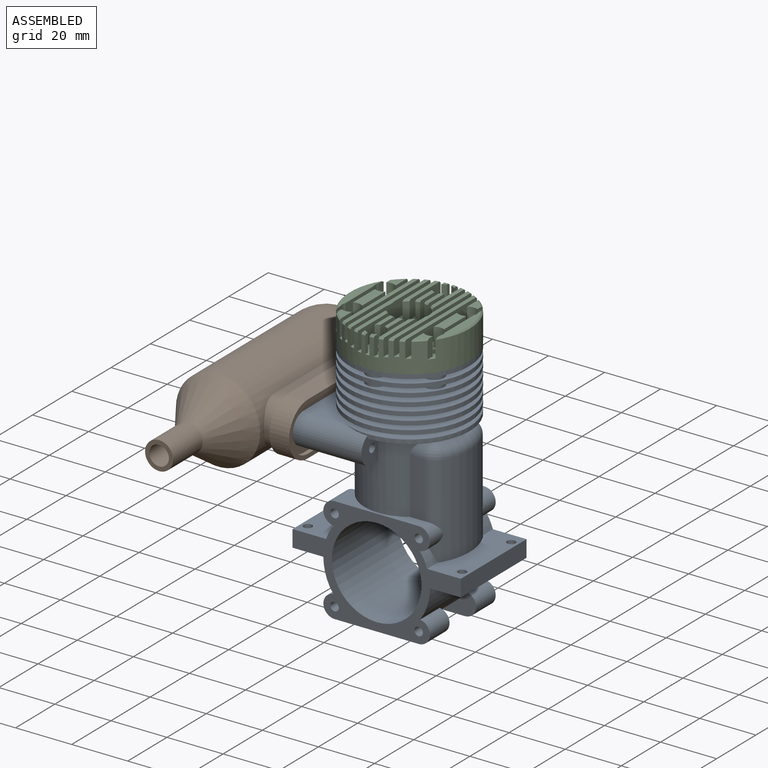
[diagram: assembled view]
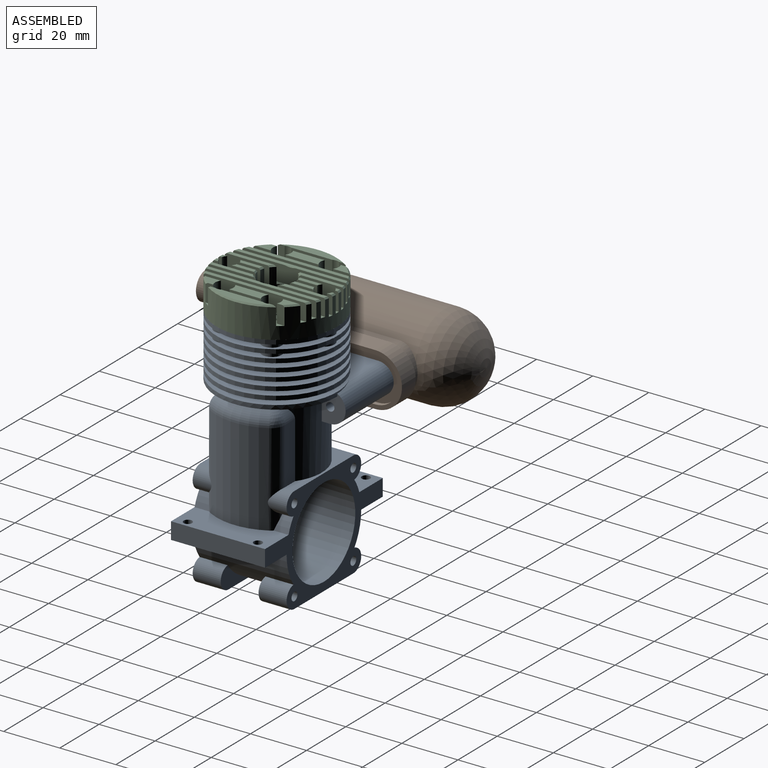
[diagram: assembled view, second angle]
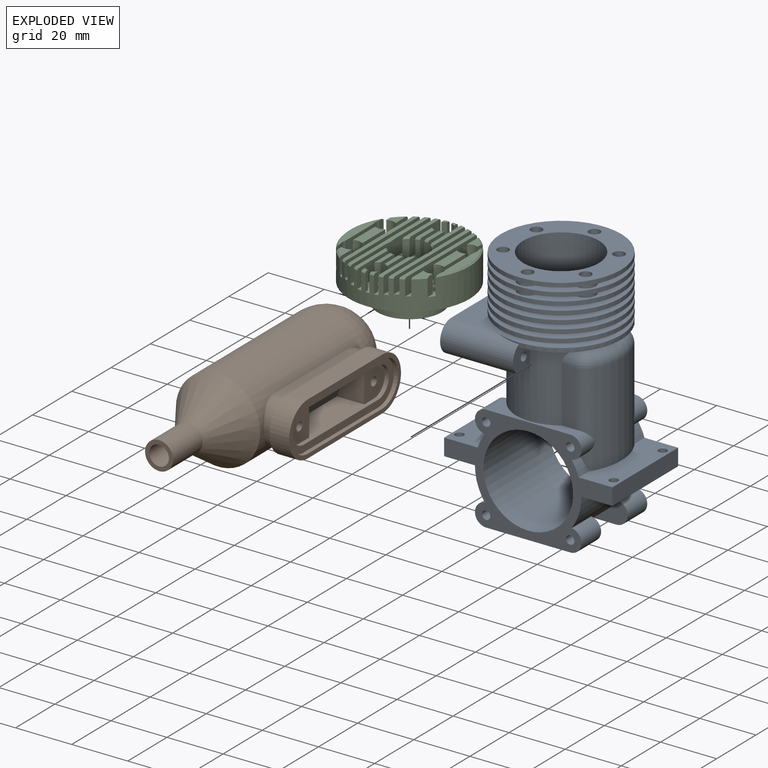
[diagram: exploded view]
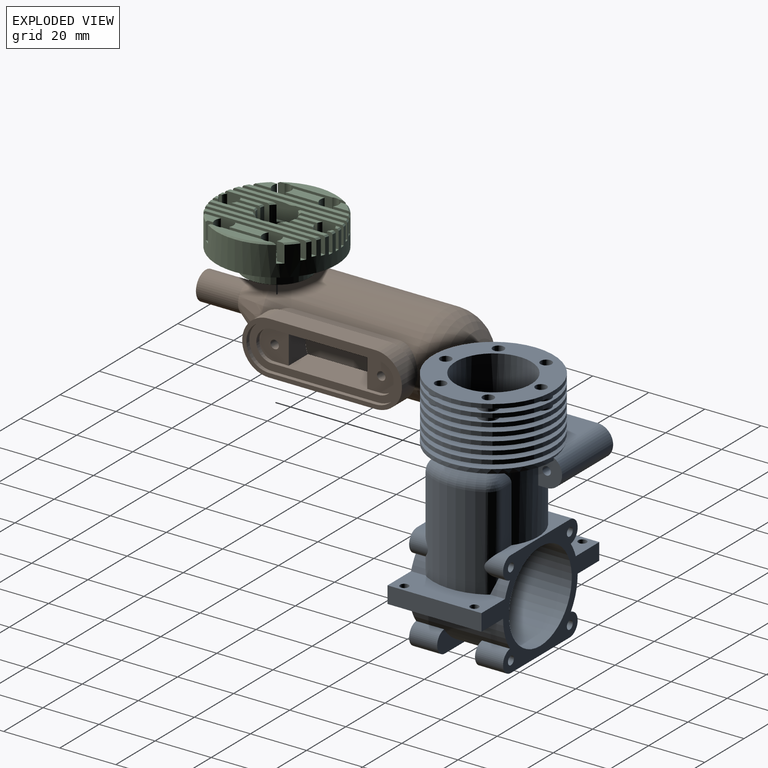
[diagram: exploded view, second angle]
ASSEMBLY  parts=3 mates=5
PART A: 167 faces, bbox 60x49x86.5 mm
  f0: cylinder r=16mm len=33.5mm, axis (0,-1,0), area 2588.1mm2, adj f2,f64,f67,f121,f122,f123,f124,f125
  f1: plane 49x11mm, normal (-1,0,0), area 290.9mm2, adj f45,f76,f78,f79,f117,f118,f119,f120
  f2: cylinder r=13.5mm len=58.92mm, axis (0,0,-1), area 3521mm2, adj f0,f19,f117,f118,f119,f120,f124,f125
  f3: cylinder r=16mm len=10.06mm, axis (0,0,-1), area 15.4mm2, adj f17,f25,f111,f115
  f4: cylinder r=16mm len=10.06mm, axis (0,0,-1), area 15.4mm2, adj f18,f21,f112,f116
  f5: cylinder r=16mm len=8.71mm, axis (0,0,-1), area 15.4mm2, adj f17,f25,f107,f111
  f6: cylinder r=16mm len=8.71mm, axis (0,0,-1), area 15.4mm2, adj f18,f21,f108,f112
  f7: cylinder r=16mm len=8.71mm, axis (0,0,-1), area 15.4mm2, adj f17,f25,f103,f107
  f8: cylinder r=16mm len=8.71mm, axis (0,0,-1), area 15.4mm2, adj f18,f21,f104,f108
  f9: cylinder r=16mm len=10.06mm, axis (0,0,-1), area 15.4mm2, adj f17,f25,f99,f103
  f10: cylinder r=16mm len=10.06mm, axis (0,0,-1), area 15.4mm2, adj f18,f21,f100,f104
  f11: cylinder r=16mm len=8.71mm, axis (0,0,-1), area 15.4mm2, adj f17,f25,f95,f99
  f12: cylinder r=16mm len=8.71mm, axis (0,0,-1), area 15.4mm2, adj f18,f21,f96,f100
  f13: cylinder r=19mm len=5.28mm, axis (0,1,0), area 25.3mm2, adj f61,f62,f64,f80
  f14: plane 30x10mm, normal (0,0,1), area 90.9mm2, adj f62,f63,f64,f70,f74,f85,f88
  f15: cylinder r=16mm len=8.71mm, axis (0,0,-1), area 15.4mm2, adj f17,f25,f95,f115
  f16: cylinder r=21.5mm len=43mm, axis (0,0,1), area 202.6mm2, adj f17,f18
  f17: plane 43x43mm, normal (0,0,-1), area 486.6mm2, adj f3,f5,f7,f9,f11,f15,f16,f95
  f18: plane 43x43mm, normal (0,0,1), area 486.6mm2, adj f4,f6,f8,f10,f12,f16,f22,f96
  f19: plane 43x43mm, normal (0,0,1), area 804.2mm2, adj f2,f20,f133,f135,f137,f139,f141,f143
  f20: cylinder r=21.5mm len=43mm, axis (0,0,1), area 202.6mm2, adj f19,f21
  f21: plane 43x43mm, normal (0,0,-1), area 486.6mm2, adj f4,f6,f8,f10,f12,f20,f22,f96
  f22: cylinder r=16mm len=8.71mm, axis (0,0,-1), area 15.4mm2, adj f18,f21,f96,f116
  f23: cylinder r=21.5mm len=43mm, axis (0,0,1), area 202.6mm2, adj f24,f25
  f24: plane 43x43mm, normal (0,0,-1), area 486.6mm2, adj f23,f26,f94,f98,f102,f106,f110,f114
  f25: plane 43x43mm, normal (0,0,1), area 486.6mm2, adj f3,f5,f7,f9,f11,f15,f23,f95
  f26: cylinder r=16mm len=32mm, axis (0,0,-1), area 131.2mm2, adj f24,f29,f93,f94,f97,f98,f101,f102
  f27: cylinder r=21.5mm len=43mm, axis (0,0,1), area 202.6mm2, adj f28,f29
  f28: plane 43x43mm, normal (0,0,-1), area 648mm2, adj f27,f30
  f29: plane 43x43mm, normal (0,0,1), area 648mm2, adj f26,f27
  f30: cylinder r=16mm len=32mm, axis (0,0,-1), area 150.8mm2, adj f28,f33
  f31: cylinder r=21.5mm len=43mm, axis (0,0,1), area 202.6mm2, adj f32,f33
  f32: plane 43x43mm, normal (0,0,-1), area 648mm2, adj f31,f34
  f33: plane 43x43mm, normal (0,0,1), area 648mm2, adj f30,f31
  f34: cylinder r=16mm len=32mm, axis (0,0,-1), area 150.8mm2, adj f32,f37
  f35: cylinder r=21.5mm len=43mm, axis (0,0,1), area 202.6mm2, adj f36,f37
  f36: plane 43x43mm, normal (0,0,-1), area 648mm2, adj f35,f38
  f37: plane 43x43mm, normal (0,0,1), area 648mm2, adj f34,f35
  f38: cylinder r=16mm len=32mm, axis (0,0,-1), area 150.8mm2, adj f36,f41
  f39: cylinder r=21.5mm len=43mm, axis (0,0,1), area 202.6mm2, adj f40,f41
  f40: plane 43x43mm, normal (0,0,-1), area 648mm2, adj f39,f42
  f41: plane 43x43mm, normal (0,0,1), area 648mm2, adj f38,f39
  f42: cylinder r=16mm len=32mm, axis (0,0,-1), area 150.8mm2, adj f40,f45
  f43: cylinder r=21.5mm len=43mm, axis (0,0,1), area 107.9mm2, adj f44,f45,f75,f77,f78,f79
  f44: plane 43x21.5mm, normal (0,0,-1), area 324mm2, adj f43,f74,f75,f77
  f45: plane 47.5x43mm, normal (0,0,1), area 943.8mm2, adj f1,f42,f43,f78,f79
  f46: plane 19x7.97mm, normal (0,1,0), area 58.3mm2, adj f50,f51,f58
  f47: plane 19x7.97mm, normal (0,-1,0), area 58.3mm2, adj f56,f57,f58
  f48: plane 19x7.97mm, normal (0,-1,0), area 58.3mm2, adj f55,f56,f58
  f49: plane 19x7.97mm, normal (0,1,0), area 58.3mm2, adj f51,f52,f58
  f50: cylinder r=4mm len=10mm, axis (0,1,0), area 120.9mm2, adj f46,f51,f58,f64
  f51: plane 30x10mm, normal (0,0,-1), area 300mm2, adj f46,f49,f50,f52,f64
  f52: cylinder r=4mm len=10mm, axis (0,-1,0), area 120.9mm2, adj f49,f51,f58,f64
  f53: plane 33.5x6mm, normal (-1,0,0), area 201mm2, adj f54,f64,f65,f67
  f54: plane 33.5x11mm, normal (0,0,-1), area 354.4mm2, adj f53,f58,f64,f67,f164,f166
  f55: cylinder r=4mm len=10mm, axis (0,-1,0), area 120.9mm2, adj f48,f56,f58,f67
  f56: plane 30x10mm, normal (0,0,-1), area 300mm2, adj f47,f48,f55,f57,f67
  f57: cylinder r=4mm len=10mm, axis (0,1,0), area 120.9mm2, adj f47,f56,f58,f67
  f58: cylinder r=19mm len=38mm, axis (0,1,0), area 1276.4mm2, adj f46,f47,f48,f49,f50,f52,f54,f55
  f59: plane 33.5x11mm, normal (0,0,-1), area 354.4mm2, adj f58,f60,f64,f67,f163,f165
  f60: plane 33.5x6mm, normal (1,0,0), area 201mm2, adj f59,f61,f64,f67
  f61: plane 33.5x11.97mm, normal (0,0,1), area 331.9mm2, adj f13,f60,f64,f67,f69,f80,f81,f86
  f62: cylinder r=4mm len=7.97mm, axis (0,1,0), area 63.2mm2, adj f13,f14,f64,f80,f86,f88
  f63: cylinder r=4mm len=10mm, axis (0,-1,0), area 120.9mm2, adj f14,f64,f70,f71
  f64: plane 60x38mm, normal (0,-1,0), area 670.5mm2, adj f0,f13,f14,f50,f51,f52,f53,f54
  f65: plane 33.5x11.97mm, normal (0,0,1), area 386.9mm2, adj f53,f64,f67,f71,f164,f166
  f66: cylinder r=4mm len=10mm, axis (0,-1,0), area 120.9mm2, adj f67,f71,f72,f73
  f67: plane 60x38mm, normal (0,1,0), area 670.5mm2, adj f0,f53,f54,f55,f56,f57,f58,f59
  f68: cylinder r=4mm len=7.97mm, axis (0,1,0), area 63.2mm2, adj f67,f69,f73,f81,f86,f89
  f69: cylinder r=19mm len=5.28mm, axis (0,1,0), area 25.3mm2, adj f61,f67,f68,f81
  f70: plane 7.97x4.49mm, normal (0,1,0), area 28.4mm2, adj f14,f63,f71,f74
  f71: cylinder r=19mm len=33.5mm, axis (0,1,0), area 188.4mm2, adj f63,f64,f65,f66,f67,f70,f72,f74
  f72: plane 7.97x4.49mm, normal (0,-1,0), area 28.4mm2, adj f66,f71,f73,f74
  f73: plane 30x10mm, normal (0,0,1), area 90.9mm2, adj f66,f67,f68,f72,f74,f84,f89
  f74: cylinder r=16mm len=34.76mm, axis (0,0,-1), area 1505.8mm2, adj f14,f44,f70,f71,f72,f73,f75,f76
  f75: plane 10.4x8.5mm, normal (1,0,0), area 65.7mm2, adj f43,f44,f74,f76,f79,f146
  f76: plane 38x26mm, normal (0,0,-1), area 585.9mm2, adj f1,f74,f75,f77,f78,f79
  f77: plane 10.4x8.5mm, normal (1,0,0), area 65.7mm2, adj f43,f44,f74,f76,f78,f145
  f78: cylinder r=5.5mm len=26mm, axis (-1,0,0), area 431.8mm2, adj f1,f43,f45,f76,f77
  f79: cylinder r=5.5mm len=26mm, axis (-1,0,0), area 431.8mm2, adj f1,f43,f45,f75,f76
  f80: cylinder r=5mm len=7.76mm, axis (0,0,-1), area 17.6mm2, adj f13,f61,f62,f86
  f81: cylinder r=5mm len=7.76mm, axis (0,0,-1), area 17.6mm2, adj f61,f68,f69,f86
  f82: cylinder r=5mm len=5.1mm, axis (1,0,0), area 25mm2, adj f74,f84,f87,f90
  f83: cylinder r=5mm len=5.1mm, axis (-1,0,0), area 25mm2, adj f74,f85,f87,f92
  f84: plane 20x5.1mm, normal (0,1,0), area 102.1mm2, adj f73,f74,f82,f89
  f85: plane 20x5.1mm, normal (0,-1,0), area 102.1mm2, adj f14,f74,f83,f88
  f86: cylinder r=21.5mm len=33mm, axis (0,0,-1), area 716.9mm2, adj f61,f62,f68,f80,f81,f88,f89,f91
  f87: plane 16x2.64mm, normal (0,0,1), area 8.4mm2, adj f74,f82,f83,f91
  f88: cylinder r=5mm len=22.76mm, axis (0,0,-1), area 110.7mm2, adj f14,f62,f85,f86,f92
  f89: cylinder r=5mm len=22.76mm, axis (0,0,-1), area 110.7mm2, adj f68,f73,f84,f86,f90
  f90: sphere r=5mm, area 26.6mm2, adj f82,f89,f91
  f91: torus R=16.5mm, axis (0,0,1), area 156.5mm2, adj f86,f87,f90,f92
  f92: sphere r=5mm, area 26.6mm2, adj f83,f88,f91
  f93: plane 7x4.83mm, normal (0,0,-1), area 26.9mm2, adj f26,f94
  f94: cylinder r=3.5mm len=7mm, axis (0,0,1), area 6.9mm2, adj f24,f26,f93
  f95: cylinder r=3.5mm len=7mm, axis (0,0,1), area 20.6mm2, adj f11,f15,f17,f25
  f96: cylinder r=3.5mm len=7mm, axis (0,0,1), area 20.6mm2, adj f12,f18,f21,f22
  f97: plane 6.97x6.27mm, normal (0,0,-1), area 26.9mm2, adj f26,f98
  f98: cylinder r=3.5mm len=6.97mm, axis (0,0,1), area 6.9mm2, adj f24,f26,f97
  f99: cylinder r=3.5mm len=6.97mm, axis (0,0,1), area 20.6mm2, adj f9,f11,f17,f25
  f100: cylinder r=3.5mm len=6.97mm, axis (0,0,1), area 20.6mm2, adj f10,f12,f18,f21
  f101: plane 6.97x6.27mm, normal (0,0,-1), area 26.9mm2, adj f26,f102
  f102: cylinder r=3.5mm len=6.97mm, axis (0,0,1), area 6.9mm2, adj f24,f26,f101
  f103: cylinder r=3.5mm len=6.97mm, axis (0,0,1), area 20.6mm2, adj f7,f9,f17,f25
  f104: cylinder r=3.5mm len=6.97mm, axis (0,0,1), area 20.6mm2, adj f8,f10,f18,f21
  f105: plane 7x4.83mm, normal (0,0,-1), area 26.9mm2, adj f26,f106
  f106: cylinder r=3.5mm len=7mm, axis (0,0,1), area 6.9mm2, adj f24,f26,f105
  f107: cylinder r=3.5mm len=7mm, axis (0,0,1), area 20.6mm2, adj f5,f7,f17,f25
  f108: cylinder r=3.5mm len=7mm, axis (0,0,1), area 20.6mm2, adj f6,f8,f18,f21
  f109: plane 6.97x6.27mm, normal (0,0,-1), area 26.9mm2, adj f26,f110
  f110: cylinder r=3.5mm len=6.97mm, axis (0,0,1), area 6.9mm2, adj f24,f26,f109
  f111: cylinder r=3.5mm len=6.97mm, axis (0,0,1), area 20.6mm2, adj f3,f5,f17,f25
  f112: cylinder r=3.5mm len=6.97mm, axis (0,0,1), area 20.6mm2, adj f4,f6,f18,f21
  f113: plane 6.97x6.27mm, normal (0,0,-1), area 26.9mm2, adj f26,f114
  f114: cylinder r=3.5mm len=6.97mm, axis (0,0,1), area 6.9mm2, adj f24,f26,f113
  f115: cylinder r=3.5mm len=6.97mm, axis (0,0,1), area 20.6mm2, adj f3,f15,f17,f25
  f116: cylinder r=3.5mm len=6.97mm, axis (0,0,1), area 20.6mm2, adj f4,f18,f21,f22
  f117: plane 26x22.36mm, normal (0,0,1), area 392.2mm2, adj f1,f2,f118,f120
  f118: plane 22.36x8mm, normal (0,-1,0), area 178.9mm2, adj f1,f2,f117,f119
  f119: plane 26x22.36mm, normal (0,0,-1), area 392.2mm2, adj f1,f2,f118,f120
  f120: plane 22.36x8mm, normal (0,1,0), area 178.9mm2, adj f1,f2,f117,f119
  f121: plane 22.95x5.17mm, normal (0,0,1), area 90.8mm2, adj f0,f122,f123,f126
  f122: cylinder r=3.5mm len=33mm, axis (0,0,-1), area 122.8mm2, adj f0,f121,f125,f126,f131
  f123: cylinder r=3.5mm len=33mm, axis (0,0,-1), area 122.8mm2, adj f0,f121,f124,f126,f129
  f124: plane 32.09x7.36mm, normal (0,-1,0), area 202.6mm2, adj f0,f2,f123,f128
  f125: plane 32.09x7.36mm, normal (0,1,0), area 202.6mm2, adj f0,f2,f122,f132
  f126: cylinder r=20mm len=33mm, axis (0,0,-1), area 668.2mm2, adj f121,f122,f123,f130
  f127: plane 16x5.63mm, normal (0,0,-1), area 50.7mm2, adj f2,f128,f130,f132
  f128: cylinder r=3.5mm len=7.36mm, axis (1,0,0), area 31.7mm2, adj f2,f124,f127,f129
  f129: sphere r=3.5mm, area 13mm2, adj f123,f128,f130
  f130: torus R=16.5mm, axis (0,0,1), area 104.2mm2, adj f126,f127,f129,f131
  f131: sphere r=3.5mm, area 13mm2, adj f122,f130,f132
  f132: cylinder r=3.5mm len=7.36mm, axis (-1,0,0), area 31.7mm2, adj f2,f125,f127,f131
  f133: cylinder r=2mm len=5mm, axis (0,0,1), area 62.8mm2, adj f19,f134
  f134: cone r=0mm half-angle=59deg, axis (0,0,1), area 14.7mm2, adj f133
  f135: cylinder r=2mm len=5mm, axis (0,0,1), area 62.8mm2, adj f19,f136
  f136: cone r=0mm half-angle=59deg, axis (0,0,1), area 14.7mm2, adj f135
  f137: cylinder r=2mm len=5mm, axis (0,0,1), area 62.8mm2, adj f19,f138
  f138: cone r=0mm half-angle=59deg, axis (0,0,1), area 14.7mm2, adj f137
  f139: cylinder r=2mm len=5mm, axis (0,0,1), area 62.8mm2, adj f19,f140
  f140: cone r=0mm half-angle=59deg, axis (0,0,1), area 14.7mm2, adj f139
  f141: cylinder r=2mm len=5mm, axis (0,0,1), area 62.8mm2, adj f19,f142
  f142: cone r=0mm half-angle=59deg, axis (0,0,1), area 14.7mm2, adj f141
  f143: cylinder r=2mm len=5mm, axis (0,0,1), area 62.8mm2, adj f19,f144
  f144: cone r=0mm half-angle=59deg, axis (0,0,1), area 14.7mm2, adj f143
  f145: cylinder r=1.5mm len=26mm, axis (1,0,0), area 245mm2, adj f1,f77
  f146: cylinder r=1.5mm len=26mm, axis (1,0,0), area 245mm2, adj f1,f75
  f147: cylinder r=1.5mm len=3mm, axis (0,-1,0), area 28.3mm2, adj f64,f148
  f148: cone r=0mm half-angle=59deg, axis (0,-1,0), area 8.2mm2, adj f147
  f149: cylinder r=1.5mm len=3mm, axis (0,-1,0), area 28.3mm2, adj f64,f150
  f150: cone r=0mm half-angle=59deg, axis (0,-1,0), area 8.2mm2, adj f149
  f151: cylinder r=1.5mm len=3mm, axis (0,-1,0), area 28.3mm2, adj f64,f152
  f152: cone r=0mm half-angle=59deg, axis (0,-1,0), area 8.2mm2, adj f151
  f153: cylinder r=1.5mm len=3mm, axis (0,-1,0), area 28.3mm2, adj f64,f154
  f154: cone r=0mm half-angle=59deg, axis (0,-1,0), area 8.2mm2, adj f153
  f155: cylinder r=1.5mm len=3mm, axis (0,1,0), area 28.3mm2, adj f67,f156
  f156: cone r=0mm half-angle=59deg, axis (0,1,0), area 8.2mm2, adj f155
  f157: cylinder r=1.5mm len=3mm, axis (0,1,0), area 28.3mm2, adj f67,f158
  f158: cone r=0mm half-angle=59deg, axis (0,1,0), area 8.2mm2, adj f157
  f159: cylinder r=1.5mm len=3mm, axis (0,1,0), area 28.3mm2, adj f67,f160
  f160: cone r=0mm half-angle=59deg, axis (0,1,0), area 8.2mm2, adj f159
  f161: cylinder r=1.5mm len=3mm, axis (0,1,0), area 28.3mm2, adj f67,f162
  f162: cone r=0mm half-angle=59deg, axis (0,1,0), area 8.2mm2, adj f161
  f163: cylinder r=1.5mm len=6mm, axis (0,0,-1), area 56.5mm2, adj f59,f61
  f164: cylinder r=1.5mm len=6mm, axis (0,0,-1), area 56.5mm2, adj f54,f65
  f165: cylinder r=1.5mm len=6mm, axis (0,0,-1), area 56.5mm2, adj f59,f61
  f166: cylinder r=1.5mm len=6mm, axis (0,0,-1), area 56.5mm2, adj f54,f65
PART B: 36 faces, bbox 100x30x40 mm
  f0: plane 11x10.5mm, normal (0,0,1), area 95.4mm2, adj f26,f27,f28,f31,f34
  f1: sphere r=15mm, area 1408.4mm2, adj f2,f16
  f2: cylinder r=15mm len=55mm, axis (1,0,0), area 4338.5mm2, adj f1,f3,f16,f17,f18,f19
  f3: cone r=5mm half-angle=33.7deg, axis (1,0,0), area 1132.7mm2, adj f2,f4
  f4: cylinder r=5mm len=15mm, axis (1,0,0), area 471.2mm2, adj f3,f5
  f5: plane 10x10mm, normal (-1,0,0), area 40.1mm2, adj f4,f9
  f6: sphere r=13.5mm, area 1145.1mm2, adj f7
  f7: cylinder r=13.5mm len=54.55mm, axis (1,0,0), area 4309.5mm2, adj f6,f8,f26,f28,f30,f31
  f8: cone r=3.75mm half-angle=33.7deg, axis (1,0,0), area 962.8mm2, adj f7,f9
  f9: cylinder r=3.5mm len=15.45mm, axis (1,0,0), area 339.9mm2, adj f5,f8
  f10: plane 38x7mm, normal (0,-1,0), area 266mm2, adj f12,f13,f14,f15
  f11: plane 38x7mm, normal (0,1,0), area 266mm2, adj f12,f13,f14,f15
  f12: plane 57x19mm, normal (0,0,-1), area 196.5mm2, adj f10,f11,f14,f15,f16,f17,f18,f19
  f13: plane 57x19mm, normal (0,0,1), area 196.5mm2, adj f10,f11,f14,f15,f20,f21,f22,f23
  f14: cylinder r=9.5mm len=19mm, axis (0,0,-1), area 208.9mm2, adj f10,f11,f12,f13
  f15: cylinder r=9.5mm len=19mm, axis (0,0,1), area 208.9mm2, adj f10,f11,f12,f13
  f16: cylinder r=8mm len=16mm, axis (0,0,1), area 104mm2, adj f1,f2,f12,f17,f18
  f17: plane 38x5.31mm, normal (0,-1,0), area 201.8mm2, adj f2,f12,f16,f19
  f18: plane 38x5.31mm, normal (0,1,0), area 201.8mm2, adj f2,f12,f16,f19
  f19: cylinder r=8mm len=16mm, axis (0,0,1), area 103.8mm2, adj f2,f12,f17,f18
  f20: cylinder r=8mm len=16mm, axis (0,0,1), area 37.7mm2, adj f13,f21,f23,f24
  f21: plane 38x1.5mm, normal (0,1,0), area 57mm2, adj f13,f20,f22,f24
  f22: cylinder r=8mm len=16mm, axis (0,0,1), area 37.7mm2, adj f13,f21,f23,f24
  f23: plane 38x1.5mm, normal (0,-1,0), area 57mm2, adj f13,f20,f22,f24
  f24: plane 54x16mm, normal (0,0,1), area 296mm2, adj f20,f21,f22,f23,f25,f26,f27,f28
  f25: cylinder r=5.5mm len=11mm, axis (0,0,1), area 25.9mm2, adj f24,f26,f28,f29
  f26: plane 38x11.17mm, normal (0,1,0), area 327.8mm2, adj f0,f7,f24,f25,f27,f29,f30,f31
  f27: cylinder r=5.5mm len=11mm, axis (0,0,1), area 25.9mm2, adj f0,f24,f26,f28
  f28: plane 38x11.17mm, normal (0,-1,0), area 327.8mm2, adj f0,f7,f24,f25,f27,f29,f30,f31
  f29: plane 11x10.5mm, normal (0,0,1), area 95.4mm2, adj f25,f26,f28,f30,f32
  f30: plane 11x9.67mm, normal (1,0,0), area 97.7mm2, adj f7,f26,f28,f29
  f31: plane 11x9.67mm, normal (-1,0,0), area 97.7mm2, adj f0,f7,f26,f28
  f32: cylinder r=1.5mm len=7mm, axis (0,0,1), area 66mm2, adj f29,f33
  f33: cone r=0mm half-angle=59deg, axis (0,0,1), area 8.2mm2, adj f32
  f34: cylinder r=1.5mm len=7mm, axis (0,0,1), area 66mm2, adj f0,f35
  f35: cone r=0mm half-angle=59deg, axis (0,0,1), area 8.2mm2, adj f34
PART C: 145 faces, bbox 43.7x43.7x18.7 mm
  f0: cone r=21.5mm half-angle=45deg, axis (0,0,-1), area 17.5mm2, adj f7,f98,f141,f144
  f1: cone r=21.5mm half-angle=45deg, axis (0,0,-1), area 3.4mm2, adj f2,f7,f17,f143
  f2: plane 5.6x3.5mm, normal (0,0,1), area 12.4mm2, adj f1,f17,f130,f143
  f3: plane 11.83x3.5mm, normal (0,0,1), area 38mm2, adj f16,f130,f132,f140
  f4: plane 5.6x3.5mm, normal (0,0,1), area 12.4mm2, adj f15,f55,f132,f142
  f5: cylinder r=3.25mm len=6.5mm, axis (0,0,1), area 15.7mm2, adj f98,f129,f139,f144
  f6: cylinder r=3.25mm len=6.5mm, axis (0,0,1), area 15.7mm2, adj f98,f129,f139,f141
  f7: cylinder r=21.5mm len=43mm, axis (0,0,-1), area 1197.8mm2, adj f0,f1,f11,f12,f15,f17,f20,f22
  f8: plane 22.44x3.25mm, normal (0,0,1), area 48.7mm2, adj f102,f119,f122,f133,f135,f138
  f9: plane 5.6x3.5mm, normal (0,0,1), area 12.4mm2, adj f11,f14,f30,f134
  f10: plane 11.83x3.5mm, normal (0,0,1), area 38mm2, adj f13,f14,f29,f136
  f11: cone r=21.5mm half-angle=45deg, axis (0,0,-1), area 3.4mm2, adj f7,f9,f30,f134
  f12: cone r=21.5mm half-angle=45deg, axis (0,0,-1), area 3.4mm2, adj f7,f31,f89,f137
  f13: cylinder r=3.25mm len=6.5mm, axis (0,0,1), area 51.2mm2, adj f10,f29,f31,f89,f109,f120,f136,f137
  f14: cylinder r=3.25mm len=6.5mm, axis (0,0,1), area 51.2mm2, adj f9,f10,f29,f30,f109,f120,f134,f136
  f15: plane 6.23x6.01mm, normal (-1,0,0), area 37.2mm2, adj f4,f7,f55,f112,f132
  f16: plane 11.83x6mm, normal (-1,0,0), area 71mm2, adj f3,f112,f130,f132
  f17: plane 6.23x6.01mm, normal (-1,0,0), area 37.2mm2, adj f1,f2,f7,f112,f130
  f18: plane 1.64x1.5mm, normal (0,0,1), area 1.7mm2, adj f22,f28,f71,f127
  f19: plane 1.64x1.5mm, normal (0,0,1), area 1.7mm2, adj f24,f26,f74,f125
  f20: plane 16.19x7.5mm, normal (0,0,1), area 79.1mm2, adj f7,f21,f22,f23,f24,f25,f26,f27
  f21: plane 7.38x6.5mm, normal (-1,0,0), area 47.9mm2, adj f20,f67,f69,f72,f126
  f22: plane 6.5x1.32mm, normal (-1,0,0), area 8.5mm2, adj f7,f18,f20,f71,f127
  f23: plane 7.38x6.5mm, normal (1,0,0), area 47.9mm2, adj f20,f67,f77,f83,f124
  f24: plane 6.5x1.32mm, normal (1,0,0), area 8.5mm2, adj f7,f19,f20,f74,f125
  f25: plane 8.56x6.51mm, normal (-1,0,0), area 55.5mm2, adj f20,f67,f77,f83,f124
  f26: plane 6.5x2.04mm, normal (-1,0,0), area 13.1mm2, adj f7,f19,f20,f74,f125
  f27: plane 8.56x6.51mm, normal (1,0,0), area 55.5mm2, adj f20,f67,f69,f72,f126
  f28: plane 6.5x2.04mm, normal (1,0,0), area 13.1mm2, adj f7,f18,f20,f71,f127
  f29: plane 11.83x6mm, normal (1,0,0), area 71mm2, adj f10,f13,f14,f109
  f30: plane 6.23x6.01mm, normal (1,0,0), area 37.2mm2, adj f7,f9,f11,f14,f109
  f31: plane 6.23x6.01mm, normal (1,0,0), area 37.2mm2, adj f7,f12,f13,f89,f109
  f32: plane 8.03x1.5mm, normal (0,0,1), area 11mm2, adj f35,f42,f93,f117
  f33: plane 8.03x1.5mm, normal (0,0,1), area 11mm2, adj f37,f40,f78,f115
  f34: plane 6.5x1.32mm, normal (-1,0,0), area 8.5mm2, adj f7,f38,f73,f94,f116
  f35: plane 7.38x6.5mm, normal (-1,0,0), area 47.9mm2, adj f32,f38,f67,f93,f117
  f36: plane 6.5x1.32mm, normal (1,0,0), area 8.5mm2, adj f7,f38,f75,f92,f114
  f37: plane 7.38x6.5mm, normal (1,0,0), area 47.9mm2, adj f33,f38,f67,f78,f115
  f38: plane 16.19x7.5mm, normal (0,0,1), area 79.1mm2, adj f7,f34,f35,f36,f37,f39,f40,f41
  f39: plane 6.5x2.04mm, normal (-1,0,0), area 13.1mm2, adj f7,f38,f75,f92,f114
  f40: plane 8.56x6.51mm, normal (-1,0,0), area 55.5mm2, adj f33,f38,f67,f78,f115
  f41: plane 6.5x2.04mm, normal (1,0,0), area 13.1mm2, adj f7,f38,f73,f94,f116
  f42: plane 8.56x6.51mm, normal (1,0,0), area 55.5mm2, adj f32,f38,f67,f93,f117
  f43: plane 36.65x6mm, normal (1,0,0), area 219.6mm2, adj f7,f56,f57,f58,f112
  f44: plane 41.53x6.71mm, normal (-1,0,0), area 244.1mm2, adj f7,f59,f60,f61,f63,f111
  f45: plane 17.05x6.03mm, normal (1,0,0), area 101.8mm2, adj f7,f62,f64,f65,f67,f111
  f46: plane 17.05x6.03mm, normal (1,0,0), area 101.8mm2, adj f7,f66,f67,f68,f70,f111
  f47: plane 17.05x6.03mm, normal (-1,0,0), area 101.8mm2, adj f7,f67,f76,f80,f84,f110
  f48: plane 17.05x6.03mm, normal (-1,0,0), area 101.8mm2, adj f7,f67,f79,f81,f85,f110
  f49: plane 41.53x6.71mm, normal (1,0,0), area 244.1mm2, adj f7,f82,f86,f87,f101,f110
  f50: plane 36.65x6mm, normal (-1,0,0), area 219.6mm2, adj f7,f88,f90,f91,f109
  f51: plane 38.33x5.5mm, normal (-1,0,0), area 210.5mm2, adj f7,f56,f57,f58,f108
  f52: plane 39.71x5.5mm, normal (1,0,0), area 218.1mm2, adj f7,f59,f60,f63,f108
  f53: plane 39.71x5.5mm, normal (-1,0,0), area 218.1mm2, adj f7,f82,f86,f87,f107
  f54: plane 38.33x5.5mm, normal (1,0,0), area 210.5mm2, adj f7,f88,f90,f91,f107
  f55: cone r=21.5mm half-angle=45deg, axis (0,0,-1), area 3.4mm2, adj f4,f7,f15,f142
  f56: cone r=21.5mm half-angle=45deg, axis (0,0,-1), area 1.2mm2, adj f7,f43,f51,f57
  f57: plane 37.2x1.5mm, normal (0,0,1), area 54.5mm2, adj f43,f51,f56,f58
  f58: cone r=21.5mm half-angle=45deg, axis (0,0,-1), area 1.2mm2, adj f7,f43,f51,f57
  f59: cone r=21.5mm half-angle=45deg, axis (0,0,-1), area 1.1mm2, adj f7,f44,f52,f60
  f60: plane 39.77x1.5mm, normal (0,0,1), area 58.2mm2, adj f44,f52,f59,f61,f63
  f61: cone r=6.5mm half-angle=45deg, axis (0,0,1), area 0mm2, adj f44,f60
  f62: cone r=6.5mm half-angle=45deg, axis (0,0,1), area 1.4mm2, adj f45,f65,f67,f106
  f63: cone r=21.5mm half-angle=45deg, axis (0,0,-1), area 1.1mm2, adj f7,f44,f52,f60
  f64: cone r=21.5mm half-angle=45deg, axis (0,0,-1), area 1.1mm2, adj f7,f45,f65,f106
  f65: plane 16.03x1.5mm, normal (0,0,1), area 22.8mm2, adj f45,f62,f64,f106
  f66: plane 16.03x1.5mm, normal (0,0,1), area 22.8mm2, adj f46,f68,f70,f105
  f67: cylinder r=6.5mm len=13mm, axis (0,0,1), area 239mm2, adj f20,f21,f23,f25,f27,f35,f37,f38
  f68: cone r=6.5mm half-angle=45deg, axis (0,0,1), area 1.4mm2, adj f46,f66,f67,f105
  f69: cone r=6.5mm half-angle=45deg, axis (0,0,1), area 1.1mm2, adj f21,f27,f67,f72
  f70: cone r=21.5mm half-angle=45deg, axis (0,0,-1), area 1.1mm2, adj f7,f46,f66,f105
  f71: cone r=21.5mm half-angle=45deg, axis (0,0,-1), area 1.1mm2, adj f7,f18,f22,f28
  f72: plane 8.03x1.5mm, normal (0,0,1), area 11mm2, adj f21,f27,f69,f126
  f73: plane 1.64x1.5mm, normal (0,0,1), area 1.7mm2, adj f34,f41,f94,f116
  f74: cone r=21.5mm half-angle=45deg, axis (0,0,-1), area 1.1mm2, adj f7,f19,f24,f26
  f75: cone r=21.5mm half-angle=45deg, axis (0,0,-1), area 1.1mm2, adj f7,f36,f39,f92
  f76: plane 16.03x1.5mm, normal (0,0,1), area 22.8mm2, adj f47,f80,f84,f104
  f77: cone r=6.5mm half-angle=45deg, axis (0,0,1), area 1.1mm2, adj f23,f25,f67,f83
  f78: cone r=6.5mm half-angle=45deg, axis (0,0,1), area 1.1mm2, adj f33,f37,f40,f67
  f79: plane 16.03x1.5mm, normal (0,0,1), area 22.8mm2, adj f48,f81,f85,f103
  f80: cone r=21.5mm half-angle=45deg, axis (0,0,-1), area 1.1mm2, adj f7,f47,f76,f104
  f81: cone r=21.5mm half-angle=45deg, axis (0,0,-1), area 1.1mm2, adj f7,f48,f79,f103
  f82: plane 39.77x1.5mm, normal (0,0,1), area 58.2mm2, adj f49,f53,f86,f87,f101
  f83: plane 8.03x1.5mm, normal (0,0,1), area 11mm2, adj f23,f25,f77,f124
  f84: cone r=6.5mm half-angle=45deg, axis (0,0,1), area 1.4mm2, adj f47,f67,f76,f104
  f85: cone r=6.5mm half-angle=45deg, axis (0,0,1), area 1.4mm2, adj f48,f67,f79,f103
  f86: cone r=21.5mm half-angle=45deg, axis (0,0,-1), area 1.1mm2, adj f7,f49,f53,f82
  f87: cone r=21.5mm half-angle=45deg, axis (0,0,-1), area 1.1mm2, adj f7,f49,f53,f82
  f88: plane 37.2x1.5mm, normal (0,0,1), area 54.5mm2, adj f50,f54,f90,f91
  f89: plane 5.6x3.5mm, normal (0,0,1), area 12.4mm2, adj f12,f13,f31,f137
  f90: cone r=21.5mm half-angle=45deg, axis (0,0,-1), area 1.2mm2, adj f7,f50,f54,f88
  f91: cone r=21.5mm half-angle=45deg, axis (0,0,-1), area 1.2mm2, adj f7,f50,f54,f88
  f92: plane 1.64x1.5mm, normal (0,0,1), area 1.7mm2, adj f36,f39,f75,f114
  f93: cone r=6.5mm half-angle=45deg, axis (0,0,1), area 1.1mm2, adj f32,f35,f42,f67
  f94: cone r=21.5mm half-angle=45deg, axis (0,0,-1), area 1.1mm2, adj f7,f34,f41,f73
  f95: plane 23x23mm, normal (0,0,-1), area 396.5mm2, adj f96,f99
  f96: cylinder r=11.5mm len=23mm, axis (0,0,-1), area 505.8mm2, adj f95,f97
  f97: plane 43x43mm, normal (0,0,-1), area 994.3mm2, adj f7,f96,f113,f118,f121,f123,f128,f131
  f98: plane 22.44x3.25mm, normal (0,0,1), area 48.7mm2, adj f0,f5,f6,f139,f141,f144
  f99: cylinder r=2.46mm len=8mm, axis (0,0,1), area 123.7mm2, adj f95,f100
  f100: plane 13x13mm, normal (0,0,1), area 113.7mm2, adj f67,f99
  f101: cone r=6.5mm half-angle=45deg, axis (0,0,1), area 0mm2, adj f49,f82
  f102: cone r=21.5mm half-angle=45deg, axis (0,0,-1), area 17.5mm2, adj f7,f8,f133,f138
  f103: plane 15.88x6.51mm, normal (1,0,0), area 102.8mm2, adj f7,f38,f67,f79,f81,f85
  f104: plane 15.88x6.51mm, normal (1,0,0), area 102.8mm2, adj f7,f20,f67,f76,f80,f84
  f105: plane 15.88x6.51mm, normal (-1,0,0), area 102.8mm2, adj f7,f38,f66,f67,f68,f70
  f106: plane 15.88x6.51mm, normal (-1,0,0), area 102.8mm2, adj f7,f20,f62,f64,f65,f67
  f107: plane 39.71x1.5mm, normal (0,0,1), area 58.6mm2, adj f7,f53,f54
  f108: plane 39.71x1.5mm, normal (0,0,1), area 58.6mm2, adj f7,f51,f52
  f109: plane 36.64x1.5mm, normal (0,0,1), area 44.3mm2, adj f7,f13,f14,f29,f30,f31,f50
  f110: plane 41.7x1.5mm, normal (0,0,1), area 55.4mm2, adj f7,f47,f48,f49,f67
  f111: plane 41.7x1.5mm, normal (0,0,1), area 55.4mm2, adj f7,f44,f45,f46,f67
  f112: plane 36.64x1.5mm, normal (0,0,1), area 44.3mm2, adj f7,f15,f16,f17,f43,f130,f132
  f113: cylinder r=1.5mm len=4.5mm, axis (0,0,1), area 42.4mm2, adj f38,f97
  f114: cylinder r=3.25mm len=6.5mm, axis (0,0,1), area 11.2mm2, adj f36,f38,f39,f92
  f115: cylinder r=3.25mm len=6.5mm, axis (0,0,1), area 11.2mm2, adj f33,f37,f38,f40
  f116: cylinder r=3.25mm len=6.5mm, axis (0,0,1), area 11.2mm2, adj f34,f38,f41,f73
  f117: cylinder r=3.25mm len=6.5mm, axis (0,0,1), area 11.2mm2, adj f32,f35,f38,f42
  f118: cylinder r=1.5mm len=4.5mm, axis (0,0,1), area 42.4mm2, adj f97,f120
  f119: cylinder r=3.25mm len=6.5mm, axis (0,0,1), area 15.7mm2, adj f8,f120,f135,f138
  f120: plane 28.16x6.5mm, normal (0,0,1), area 78.3mm2, adj f7,f13,f14,f118,f119,f121,f122,f133
  f121: cylinder r=1.5mm len=4.5mm, axis (0,0,1), area 42.4mm2, adj f97,f120
  f122: cylinder r=3.25mm len=6.5mm, axis (0,0,1), area 15.7mm2, adj f8,f120,f133,f135
  f123: cylinder r=1.5mm len=4.5mm, axis (0,0,1), area 42.4mm2, adj f20,f97
  f124: cylinder r=3.25mm len=6.5mm, axis (0,0,1), area 11.2mm2, adj f20,f23,f25,f83
  f125: cylinder r=3.25mm len=6.5mm, axis (0,0,1), area 11.2mm2, adj f19,f20,f24,f26
  f126: cylinder r=3.25mm len=6.5mm, axis (0,0,1), area 11.2mm2, adj f20,f21,f27,f72
  f127: cylinder r=3.25mm len=6.5mm, axis (0,0,1), area 11.2mm2, adj f18,f20,f22,f28
  f128: cylinder r=1.5mm len=4.5mm, axis (0,0,1), area 42.4mm2, adj f97,f129
  f129: plane 28.16x6.5mm, normal (0,0,1), area 78.3mm2, adj f5,f6,f7,f128,f130,f131,f132,f139
  f130: cylinder r=3.25mm len=6.5mm, axis (0,0,1), area 51.2mm2, adj f2,f3,f16,f17,f112,f129,f140,f143
  f131: cylinder r=1.5mm len=4.5mm, axis (0,0,1), area 42.4mm2, adj f97,f129
  f132: cylinder r=3.25mm len=6.5mm, axis (0,0,1), area 51.2mm2, adj f3,f4,f15,f16,f112,f129,f140,f142
  f133: plane 6.51x2.46mm, normal (1,0,0), area 15.7mm2, adj f7,f8,f102,f120,f122
  f134: plane 6.51x2.72mm, normal (-1,0,0), area 17.4mm2, adj f7,f9,f11,f14,f120
  f135: plane 14.64x6.5mm, normal (1,0,0), area 95.1mm2, adj f8,f119,f120,f122
  f136: plane 11.26x6.5mm, normal (-1,0,0), area 73.2mm2, adj f10,f13,f14,f120
  f137: plane 6.51x2.72mm, normal (-1,0,0), area 17.4mm2, adj f7,f12,f13,f89,f120
  f138: plane 6.51x2.46mm, normal (1,0,0), area 15.7mm2, adj f7,f8,f102,f119,f120
  f139: plane 14.64x6.5mm, normal (-1,0,0), area 95.1mm2, adj f5,f6,f98,f129
  f140: plane 11.26x6.5mm, normal (1,0,0), area 73.2mm2, adj f3,f129,f130,f132
  f141: plane 6.51x2.46mm, normal (-1,0,0), area 15.7mm2, adj f0,f6,f7,f98,f129
  f142: plane 6.51x2.72mm, normal (1,0,0), area 17.4mm2, adj f4,f7,f55,f129,f132
  f143: plane 6.51x2.72mm, normal (1,0,0), area 17.4mm2, adj f1,f2,f7,f129,f130
  f144: plane 6.51x2.46mm, normal (-1,0,0), area 15.7mm2, adj f0,f5,f7,f98,f129
PLACE A t=(-8.68,7.36,-5.69)mm fixed
PLACE B rot(axis=(0.58,0.58,0.58),120deg) t=(-56.68,-51.64,35.31)mm
PLACE C t=(-8.68,7.36,54.81)mm
MATE cylindrical B.f19 <-> A.f79  axis (1,0,0) through (-34.68,-11.64,35.31)mm
MATE planar A.f1 <-> B.f0  axis (-1,0,0) through (-34.68,20.36,31.31)mm
MATE cylindrical C.f0 <-> A.f2  axis (0,0,-1) through (-8.68,7.36,54.81)mm
MATE cylindrical A.f98 <-> C.f6  axis (0,0,1) through (6.05,-1.14,61.81)mm
MATE cylindrical A.f78 <-> B.f16  axis (-1,0,0) through (-34.68,26.36,35.31)mm
